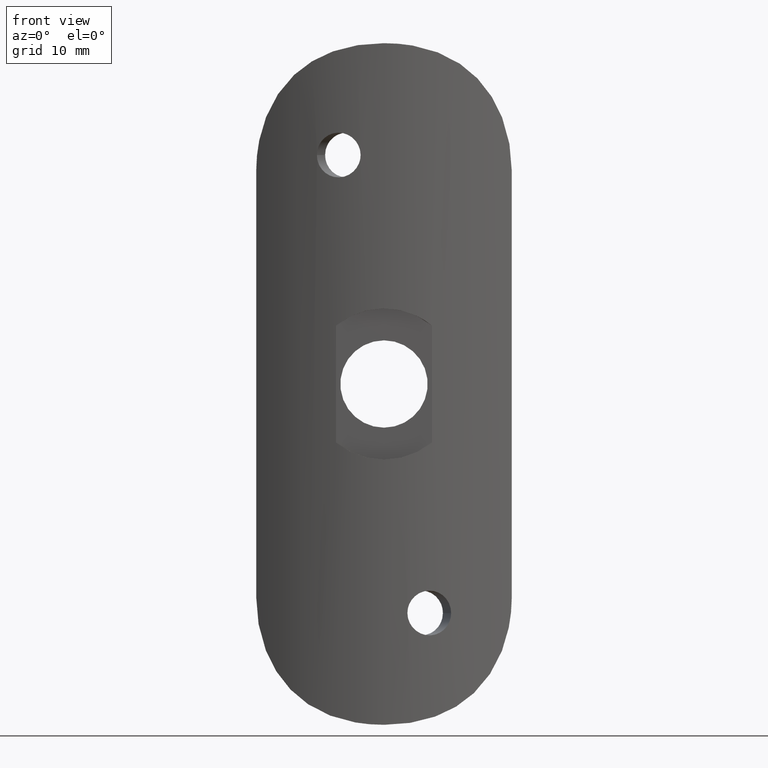
[diagram: clean part render]
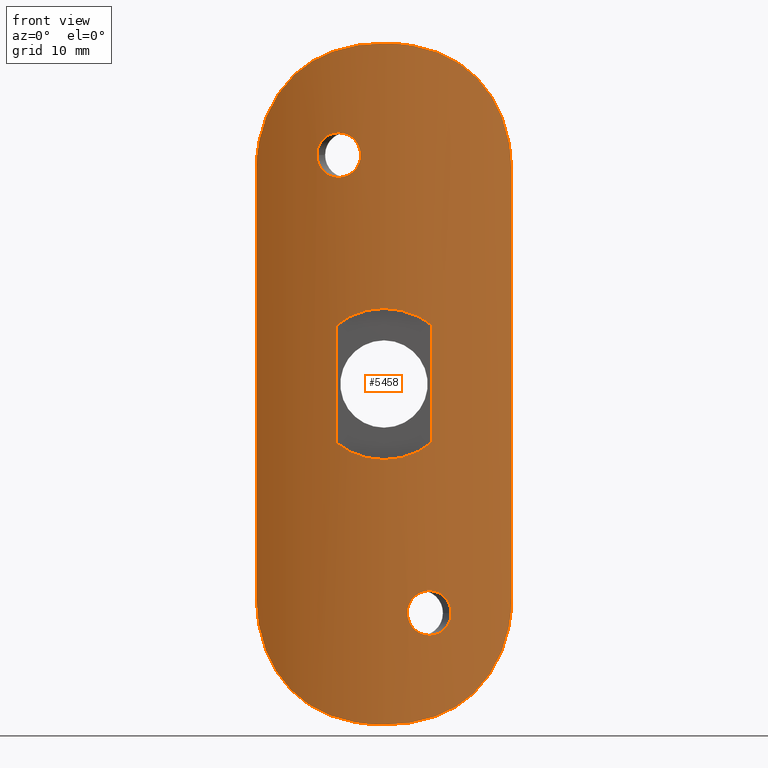
[diagram: same view with one face highlighted and labeled with its STEP entity id]
A machine part, front view. The second image highlights one B-rep face of the part: STEP entity #5458.
In plain terms, the highlighted cylindrical surface (partial cylindrical patch) has radius 20.55 mm, axis along (-0, -0, -1).
Its self-contained STEP definition (entity closure, byte-faithful):
#13 = CARTESIAN_POINT ( 'NONE',  ( 2.196107964758905684, 0.1176822213650279281, -21.63884947450718244 ) ) ;
#37 = CARTESIAN_POINT ( 'NONE',  ( -6.291284658342779501, 0.9866935900584847818, 21.22463982239049685 ) ) ;
#55 = VERTEX_POINT ( 'NONE', #4670 ) ;
#93 = CARTESIAN_POINT ( 'NONE',  ( 12.00000000000000000, 3.867599093655612830, 20.82532465503840413 ) ) ;
#95 = CARTESIAN_POINT ( 'NONE',  ( 5.891578754919766681, 0.8625008551838139192, -22.78110642044669731 ) ) ;
#100 = CARTESIAN_POINT ( 'NONE',  ( -2.196107964758913234, 0.1176822213650333959, 21.50000000000002842 ) ) ;
#130 = CARTESIAN_POINT ( 'NONE',  ( 1.022551623591454240, 0.02447659234468003292, -7.028918398244950794 ) ) ;
#152 = CARTESIAN_POINT ( 'NONE',  ( 6.304327887840908140, 0.9909113227995350881, -21.50000000000002842 ) ) ;
#201 = CARTESIAN_POINT ( 'NONE',  ( 2.196107964758904352, 0.1176822213650361715, -21.50000000000002487 ) ) ;
#206 = VERTEX_POINT ( 'NONE', #2045 ) ;
#212 = CARTESIAN_POINT ( 'NONE',  ( -3.011738608398835115, 0.2215739278179910954, 19.83003175637896476 ) ) ;
#229 = CARTESIAN_POINT ( 'NONE',  ( 5.619240430550133780, 0.7829490649836835514, -23.08317365209963512 ) ) ;
#238 = CARTESIAN_POINT ( 'NONE',  ( -4.191232499519207622, 0.4293674073479218367, -5.745343789263872125 ) ) ;
#265 = CARTESIAN_POINT ( 'NONE',  ( 0.2059697140839437668, -3.066259269060567227E-16, -7.100000000000000533 ) ) ;
#315 = CARTESIAN_POINT ( 'NONE',  ( 7.565155939109336813, 1.440374234520338748, 29.76760648692991396 ) ) ;
#360 = CARTESIAN_POINT ( 'NONE',  ( -11.64480806118127632, 3.617302323465929170, 23.22607689744122439 ) ) ;
#371 = CARTESIAN_POINT ( 'NONE',  ( -11.93189946652243627, 3.818008342000465571, -21.63634898292987430 ) ) ;
#398 = CARTESIAN_POINT ( 'NONE',  ( 5.536237308077762265, 0.7447776640479754073, 30.96738982605044299 ) ) ;
#402 = CARTESIAN_POINT ( 'NONE',  ( -4.019515070331801887, 0.3929784181706611479, 31.48658961672468592 ) ) ;
#423 = VERTEX_POINT ( 'NONE', #8974 ) ;
#436 = EDGE_CURVE ( 'NONE', #206, #4526, #10312, .T. ) ;
#441 = CARTESIAN_POINT ( 'NONE',  ( -7.556449153321901591, 1.436897327260850732, 29.77418816922519795 ) ) ;
#465 = ORIENTED_EDGE ( 'NONE', *, *, #4002, .T. ) ;
#556 = B_SPLINE_CURVE_WITH_KNOTS ( 'NONE', 3,
 ( #5312, #4446, #5361, #3434, #11446, #402, #10444, #5441, #10409, #10316, #441, #3351, #8470, #10481, #4486, #12371, #5485, #6401, #7492, #9307, #6329, #360, #2447, #7362, #1366, #4404 ),
 .UNSPECIFIED., .F., .F.,
 ( 4, 2, 2, 2, 2, 2, 2, 2, 2, 2, 2, 2, 4 ),
 ( 1.143113421885059593E-17, 0.002442704272823939624, 0.003664056409235903582, 0.004885408545647868840, 0.007328112818471794153, 0.008549464954883760279, 0.009770817091295727272, 0.01099216922770769427, 0.01221352136411965952, 0.01465622563694359871, 0.01587757777335556744, 0.01709892990976753444, 0.01954163418259147189 ),
 .UNSPECIFIED. ) ;
#731 = B_SPLINE_CURVE_WITH_KNOTS ( 'NONE', 3,
 ( #4179, #93, #5175, #7357, #12456, #7399, #6276, #12328, #4398, #1404, #10441, #11438, #5308, #4311, #6397, #315, #2400, #3257, #398, #8424, #11257, #8254, #5269, #8293, #11396, #2312 ),
 .UNSPECIFIED., .F., .F.,
 ( 4, 2, 2, 2, 2, 2, 2, 2, 2, 2, 2, 2, 4 ),
 ( 0.000000000000000000, 0.002441037165012326787, 0.003661555747518484977, 0.004882074330024644034, 0.007323111495036960412, 0.008543630077543121204, 0.009764148660049279393, 0.01098466724255543932, 0.01220518582506159404, 0.01464622299007390174, 0.01586674157258005646, 0.01708726015508621118, 0.01952829732009852409 ),
 .UNSPECIFIED. ) ;
#819 = B_SPLINE_CURVE_WITH_KNOTS ( 'NONE', 3,
 ( #10314, #11729, #11778, #10942, #7120, #1121, #3331, #2299, #9593, #5683, #5727, #1361, #6652, #1164, #12655, #9213, #4223, #3113, #3023, #4129, #12048, #12142, #5132, #10180, #11077, #7225 ),
 .UNSPECIFIED., .F., .F.,
 ( 4, 2, 2, 2, 2, 2, 2, 2, 2, 2, 2, 2, 4 ),
 ( 7.499305273336299745E-18, 0.002442704272823938323, 0.003664056409235903582, 0.004885408545647870575, 0.007328112818471798490, 0.008549464954883763748, 0.009770817091295729007, 0.01099216922770769427, 0.01221352136411965952, 0.01465622563694360045, 0.01587757777335557438, 0.01709892990976754484, 0.01954163418259148924 ),
 .UNSPECIFIED. ) ;
#876 = EDGE_CURVE ( 'NONE', #423, #4526, #819, .T. ) ;
#881 = CARTESIAN_POINT ( 'NONE',  ( -0.8225946775544148437, 0.01545847802524476060, 7.055152419481142800 ) ) ;
#921 = ORIENTED_EDGE ( 'NONE', *, *, #8559, .F. ) ;
#967 = CARTESIAN_POINT ( 'NONE',  ( -3.858693731907320679, 0.3623974372399190180, 5.973502814428242935 ) ) ;
#996 = CARTESIAN_POINT ( 'NONE',  ( 4.190950511543816148, 0.4293040401896541236, -5.745575327771957674 ) ) ;
#1025 = EDGE_CURVE ( 'NONE', #206, #8933, #731, .T. ) ;
#1035 = CARTESIAN_POINT ( 'NONE',  ( -6.100378874264540840, 0.9262724475449090056, 20.56837844780813640 ) ) ;
#1049 = CARTESIAN_POINT ( 'NONE',  ( -3.158314881030830801, 0.2410398675639368604, 6.371601078449765865 ) ) ;
#1076 = CARTESIAN_POINT ( 'NONE',  ( -5.892107906062030942, 0.8626585104905203361, 20.21956268108030841 ) ) ;
#1084 = CARTESIAN_POINT ( 'NONE',  ( 2.016323884336121086, 0.09546835876887949102, -6.820010655593130799 ) ) ;
#1106 = CARTESIAN_POINT ( 'NONE',  ( 4.138444909906153768, 0.4205434202813690403, -19.39989493954468003 ) ) ;
#1121 = CARTESIAN_POINT ( 'NONE',  ( 4.019515070331798334, 0.3929784181706627577, -31.48658961672468592 ) ) ;
#1126 = CARTESIAN_POINT ( 'NONE',  ( -6.038498007010931090, 0.9070650787473959475, 20.44778618800197023 ) ) ;
#1164 = CARTESIAN_POINT ( 'NONE',  ( 8.992997745725388015, 2.069792450696423813, -28.47099985454206816 ) ) ;
#1178 = CARTESIAN_POINT ( 'NONE',  ( 2.787982894083824714, 0.1862926250899646641, -6.542572791436417567 ) ) ;
#1188 = CARTESIAN_POINT ( 'NONE',  ( 6.239739115062144847, 0.9701919011343452803, -22.04565024489599523 ) ) ;
#1219 = CARTESIAN_POINT ( 'NONE',  ( 3.157583189755941433, 0.2409226289118731601, -6.371976759672588031 ) ) ;
#1229 = CARTESIAN_POINT ( 'NONE',  ( 6.037623490229741208, 0.9067969670731634846, -22.55373155016709674 ) ) ;
#1248 = CARTESIAN_POINT ( 'NONE',  ( -5.619607186773508900, 0.7830592296716510914, 23.08268628141317080 ) ) ;
#1258 = CARTESIAN_POINT ( 'NONE',  ( -3.738126498205140091, 0.3424008527606209329, 19.46729538792309100 ) ) ;
#1361 = CARTESIAN_POINT ( 'NONE',  ( 8.164066724082505999, 1.688435056704962856, -29.28423691125916761 ) ) ;
#1366 = CARTESIAN_POINT ( 'NONE',  ( -12.00000000000000000, 3.867599093655615050, 20.82542637679248543 ) ) ;
#1375 = CARTESIAN_POINT ( 'NONE',  ( -10.57120301057236489, 2.921180050394568184, -26.23181291921781622 ) ) ;
#1396 = B_SPLINE_CURVE_WITH_KNOTS ( 'NONE', 3,
 ( #152, #2150, #6155, #7104, #9087, #2200, #3082, #7152, #4105, #12063, #9185, #9138, #10111, #1106, #10065, #10195, #8123, #5100, #3222, #10155, #11230, #12243, #6244, #11052, #11191, #12194 ),
 .UNSPECIFIED., .F., .F.,
 ( 4, 2, 2, 2, 2, 2, 2, 2, 2, 2, 2, 2, 4 ),
 ( 0.006569841464936864057, 0.007390878664690698346, 0.008211915864444533503, 0.008622434464321445877, 0.009032953064198359985, 0.009443471664075272359, 0.009853990263952186468, 0.01026450886382910058, 0.01067502746370601469, 0.01108554606358292706, 0.01149606466345984117, 0.01231710186321366071, 0.01313813906296748026 ),
 .UNSPECIFIED. ) ;
#1404 = CARTESIAN_POINT ( 'NONE',  ( 9.955326618855732335, 2.570852261898295410, 27.23425730716095572 ) ) ;
#1412 = CARTESIAN_POINT ( 'NONE',  ( 0.000000000000000000, 20.54999999999999716, 32.00000000000000000 ) ) ;
#1459 = CARTESIAN_POINT ( 'NONE',  ( -11.31885359670267732, 3.397375670358062205, -24.39806094091036570 ) ) ;
#1476 = EDGE_CURVE ( 'NONE', #11277, #55, #2429, .T. ) ;
#1684 = ORIENTED_EDGE ( 'NONE', *, *, #1476, .T. ) ;
#1808 = CARTESIAN_POINT ( 'NONE',  ( -3.237124911212131195, 0.2526143562426093614, -31.68063621403022267 ) ) ;
#1869 = DIRECTION ( 'NONE',  ( -0.000000000000000000, -0.000000000000000000, -1.000000000000000000 ) ) ;
#1889 = CARTESIAN_POINT ( 'NONE',  ( 2.196107964758904352, 0.1176822213650361715, -21.50000000000002487 ) ) ;
#1924 = ORIENTED_EDGE ( 'NONE', *, *, #9557, .T. ) ;
#1964 = CARTESIAN_POINT ( 'NONE',  ( -2.788949871156110039, 0.1864290471342361366, 6.542148199324964608 ) ) ;
#1977 = CARTESIAN_POINT ( 'NONE',  ( -2.903994566246707709, 0.2059905680970837427, 23.08075861847516208 ) ) ;
#2029 = CARTESIAN_POINT ( 'NONE',  ( -5.806867891380339763, 0.8372576783111697063, 20.11157854779412091 ) ) ;
#2045 = CARTESIAN_POINT ( 'NONE',  ( 12.00000000000000000, 3.867599093655613718, 20.00000000000000000 ) ) ;
#2107 = CARTESIAN_POINT ( 'NONE',  ( -3.152300355519400910, 0.2400895821910629391, -6.374632866597692349 ) ) ;
#2117 = CARTESIAN_POINT ( 'NONE',  ( -2.460009148017181513, 0.1475025836330511597, 22.55600729833793139 ) ) ;
#2150 = CARTESIAN_POINT ( 'NONE',  ( 6.304327887840909916, 0.9909113227995355322, -21.22586212097624170 ) ) ;
#2158 = CARTESIAN_POINT ( 'NONE',  ( -4.931276231783177089, 0.6000320691308591581, 23.49308847869957262 ) ) ;
#2198 = CARTESIAN_POINT ( 'NONE',  ( -0.8174884915201696689, 0.01234469634162299947, -7.064494831805584241 ) ) ;
#2200 = CARTESIAN_POINT ( 'NONE',  ( 5.621723058020299923, 0.7836615918610738696, -19.91924138152489476 ) ) ;
#2206 = CARTESIAN_POINT ( 'NONE',  ( -5.515393176443282641, 0.7536365650231825475, 23.17123944591990181 ) ) ;
#2299 = CARTESIAN_POINT ( 'NONE',  ( 5.532917837906416558, 0.7438366506647351439, -30.96886078951178689 ) ) ;
#2302 = CARTESIAN_POINT ( 'NONE',  ( -3.236914806685621038, 0.2562113307606161960, 19.67801841657226092 ) ) ;
#2312 = CARTESIAN_POINT ( 'NONE',  ( -9.117266696107152617E-15, 0.000000000000000000, 32.00000000000000000 ) ) ;
#2323 = CARTESIAN_POINT ( 'NONE',  ( -4.411722216362568005, 0.4754446895425801789, -31.36894475695905982 ) ) ;
#2344 = CARTESIAN_POINT ( 'NONE',  ( -3.609214619167734117, 0.3190269527922297566, 19.50698948931666621 ) ) ;
#2354 = LINE ( 'NONE', #5694, #10054 ) ;
#2376 = CARTESIAN_POINT ( 'NONE',  ( -9.250554041662468308, 2.197810460345604344, -28.17621965723953892 ) ) ;
#2389 = CARTESIAN_POINT ( 'NONE',  ( -2.473966946412533563, 0.1493183851465804957, 20.44626844983296721 ) ) ;
#2400 = CARTESIAN_POINT ( 'NONE',  ( 7.245185304457206321, 1.316302063506890718, 29.99670429303103347 ) ) ;
#2429 = LINE ( 'NONE', #6985, #3224 ) ;
#2447 = CARTESIAN_POINT ( 'NONE',  ( -11.72926870889600615, 3.675950132417820981, 22.83126104549899793 ) ) ;
#2784 = VERTEX_POINT ( 'NONE', #10767 ) ;
#2936 = CARTESIAN_POINT ( 'NONE',  ( 2.303480977588604706, 0.1294397518470195019, -22.17732966109167592 ) ) ;
#2957 = ORIENTED_EDGE ( 'NONE', *, *, #8695, .T. ) ;
#2981 = CARTESIAN_POINT ( 'NONE',  ( 0.8154304983382341110, 0.01225860480964739360, 7.064744495770781008 ) ) ;
#3023 = CARTESIAN_POINT ( 'NONE',  ( 10.90931707614188007, 3.131748158434783935, -25.52295538976314049 ) ) ;
#3028 = CARTESIAN_POINT ( 'NONE',  ( 0.4092360664649021262, -5.026738864255330492E-05, 7.100145492238564948 ) ) ;
#3048 = CARTESIAN_POINT ( 'NONE',  ( -2.196107964758915454, 0.1176822213650350613, 21.77413787902382936 ) ) ;
#3056 = CARTESIAN_POINT ( 'NONE',  ( -4.541476731565495584, 0.5062318690124316678, 19.40009968649576422 ) ) ;
#3082 = CARTESIAN_POINT ( 'NONE',  ( 5.517644774854876921, 0.7542645363679744142, -19.83054709388247261 ) ) ;
#3113 = CARTESIAN_POINT ( 'NONE',  ( 10.57043074677839201, 2.920680030414521955, -26.23359019163507000 ) ) ;
#3116 = CARTESIAN_POINT ( 'NONE',  ( 4.541815802787618317, 0.5077306118882403130, -23.58637034614039862 ) ) ;
#3195 = CARTESIAN_POINT ( 'NONE',  ( -6.304327887840915245, 0.9909113227995374196, 21.36115052549288507 ) ) ;
#3222 = CARTESIAN_POINT ( 'NONE',  ( 3.239306059514502678, 0.2565906414610314989, -19.67659486803183810 ) ) ;
#3224 = VECTOR ( 'NONE', #7919, 1000.000000000000000 ) ;
#3257 = CARTESIAN_POINT ( 'NONE',  ( 6.244935086374507449, 0.9590666021320810586, 30.62764866027265143 ) ) ;
#3276 = CARTESIAN_POINT ( 'NONE',  ( -6.250912354969938356, 0.9734908483665378753, 22.05346326636900756 ) ) ;
#3331 = CARTESIAN_POINT ( 'NONE',  ( 4.407850644025230302, 0.4745909305598443595, -31.37018340299277241 ) ) ;
#3351 = CARTESIAN_POINT ( 'NONE',  ( -8.164066724082507776, 1.688435056704962411, 29.28423691125915340 ) ) ;
#3421 = CARTESIAN_POINT ( 'NONE',  ( -2.711769769580428591, 0.1794705419655740208, 20.11288244746490150 ) ) ;
#3434 = CARTESIAN_POINT ( 'NONE',  ( -2.836642390231776112, 0.1927378290949691986, 31.75985753279653068 ) ) ;
#3441 = CARTESIAN_POINT ( 'NONE',  ( -12.00000000000000355, 3.867599093655614606, -20.82532465503841479 ) ) ;
#3495 = FACE_BOUND ( 'NONE', #8541, .T. ) ;
#3570 = VECTOR ( 'NONE', #1869, 1000.000000000000000 ) ;
#3672 = AXIS2_PLACEMENT_3D ( 'NONE', #1412, #5406, #8396 ) ;
#3837 = ORIENTED_EDGE ( 'NONE', *, *, #10281, .F. ) ;
#3899 = CARTESIAN_POINT ( 'NONE',  ( -4.505552130427524560, 0.5000000000000004441, 5.487257967327575869 ) ) ;
#4002 = EDGE_CURVE ( 'NONE', #2784, #5058, #11821, .T. ) ;
#4007 = CARTESIAN_POINT ( 'NONE',  ( 1.615795529048174251, 0.06265981462883447872, 6.916721026609292444 ) ) ;
#4042 = CARTESIAN_POINT ( 'NONE',  ( 4.505552130427524560, 0.5000000000000004441, 5.487257967327575869 ) ) ;
#4063 = CARTESIAN_POINT ( 'NONE',  ( -4.001566501396760955, 0.3929171881103979969, 23.58617600365094447 ) ) ;
#4074 = CARTESIAN_POINT ( 'NONE',  ( -4.002770174454591157, 0.3931529265465266154, 19.41362965385966177 ) ) ;
#4091 = CARTESIAN_POINT ( 'NONE',  ( 6.291182614311607857, 0.9866605425907668536, -21.77636478482308036 ) ) ;
#4105 = CARTESIAN_POINT ( 'NONE',  ( 5.180606738276478218, 0.6633215442318358690, -19.61348174257146937 ) ) ;
#4129 = CARTESIAN_POINT ( 'NONE',  ( 11.31942153671302975, 3.397748102794349911, -24.39640287687041820 ) ) ;
#4133 = CARTESIAN_POINT ( 'NONE',  ( 6.304327887840905476, 0.9909113227995353101, -21.63710115732733286 ) ) ;
#4151 = CARTESIAN_POINT ( 'NONE',  ( -6.304327887840914357, 0.9909113227995376416, 21.77763369169881713 ) ) ;
#4179 = CARTESIAN_POINT ( 'NONE',  ( 12.00000000000000000, 3.867599093655613718, 20.00000000000000000 ) ) ;
#4181 = CARTESIAN_POINT ( 'NONE',  ( 5.297158660191573887, 0.6941296804635922468, -23.32198158342779593 ) ) ;
#4197 = CARTESIAN_POINT ( 'NONE',  ( -4.540129781961820044, 0.5073516558733849324, 23.58656559437250522 ) ) ;
#4208 = CARTESIAN_POINT ( 'NONE',  ( -2.263540092760234490, 0.1250247084382341001, 20.95434975510405806 ) ) ;
#4223 = CARTESIAN_POINT ( 'NONE',  ( 9.952719643953837902, 2.569399929939180982, -27.23823856945869792 ) ) ;
#4253 = CARTESIAN_POINT ( 'NONE',  ( -2.209845717753645911, 0.1191456048414967633, 21.22363521517698004 ) ) ;
#4284 = CARTESIAN_POINT ( 'NONE',  ( -8.169198336596609877, 1.690689837189891298, -29.27964985723644276 ) ) ;
#4292 = CARTESIAN_POINT ( 'NONE',  ( -6.049714249835681734, 0.9103825564539168580, 22.55852322862247306 ) ) ;
#4311 = CARTESIAN_POINT ( 'NONE',  ( 8.454984399070681889, 1.817544348643117536, 29.01973767204460231 ) ) ;
#4324 = CARTESIAN_POINT ( 'NONE',  ( 2.797486057563126173E-19, -8.657447964749999592E-16, -7.099999999999998757 ) ) ;
#4326 = CARTESIAN_POINT ( 'NONE',  ( -5.536237308077768482, 0.7447776640479801813, -30.96738982605043233 ) ) ;
#4334 = CARTESIAN_POINT ( 'NONE',  ( -4.801660277919112652, 0.5683937167496024845, 23.53337578889404824 ) ) ;
#4398 = CARTESIAN_POINT ( 'NONE',  ( 10.57120301057235956, 2.921180050394565075, 26.23181291921781622 ) ) ;
#4404 = CARTESIAN_POINT ( 'NONE',  ( -12.00000000000000000, 3.867599093655613718, 20.00000000000000000 ) ) ;
#4446 = CARTESIAN_POINT ( 'NONE',  ( -0.8244347916045254854, 6.324512672832084957E-17, 32.00000000000000000 ) ) ;
#4486 = CARTESIAN_POINT ( 'NONE',  ( -9.248077892315398785, 2.196565208356638266, 28.17913971635068293 ) ) ;
#4526 = VERTEX_POINT ( 'NONE', #7653 ) ;
#4670 = CARTESIAN_POINT ( 'NONE',  ( 4.505552130427524560, 0.5000000000000004441, -5.487257967327575869 ) ) ;
#4921 = CARTESIAN_POINT ( 'NONE',  ( 4.505552130427524560, 0.5000000000000004441, 5.487257967327575869 ) ) ;
#4964 = CARTESIAN_POINT ( 'NONE',  ( 2.408715658835561158, 0.1415852076297058337, -22.43162155219192400 ) ) ;
#4993 = ORIENTED_EDGE ( 'NONE', *, *, #12291, .T. ) ;
#4999 = CARTESIAN_POINT ( 'NONE',  ( 3.854152017371394567, 0.3615104314349227854, 5.976505600328446022 ) ) ;
#5019 = CARTESIAN_POINT ( 'NONE',  ( -3.355921083440997155, 0.2754726353114332338, 23.38651825742859813 ) ) ;
#5028 = EDGE_LOOP ( 'NONE', ( #7985, #8919, #1684, #4993, #465 ) ) ;
#5058 = VERTEX_POINT ( 'NONE', #12654 ) ;
#5066 = CARTESIAN_POINT ( 'NONE',  ( -2.251196352204623885, 0.1234079979794760751, 22.05054682085797424 ) ) ;
#5088 = CARTESIAN_POINT ( 'NONE',  ( 3.732009036719485806, 0.3401370741220184901, -23.54469293929370011 ) ) ;
#5100 = CARTESIAN_POINT ( 'NONE',  ( 3.358520300593894614, 0.2759020642753255426, -19.61217654066244975 ) ) ;
#5126 = CARTESIAN_POINT ( 'NONE',  ( 0.4127698199974663695, 0.003133423836613627965, -7.090945252661482456 ) ) ;
#5132 = CARTESIAN_POINT ( 'NONE',  ( 11.72926870889600970, 3.675950132417822314, -22.83126104549899438 ) ) ;
#5175 = CARTESIAN_POINT ( 'NONE',  ( 11.93189946652243449, 3.818008342000464683, 21.63634898292986719 ) ) ;
#5177 = CARTESIAN_POINT ( 'NONE',  ( 4.931496442379488698, 0.6000866306928605010, -23.49301051068339063 ) ) ;
#5244 = CARTESIAN_POINT ( 'NONE',  ( -5.899482936464679916, 0.8640575412914385245, 22.79248882129712328 ) ) ;
#5269 = CARTESIAN_POINT ( 'NONE',  ( 2.839675941182904673, 0.1931468925307959772, 31.75932234247533259 ) ) ;
#5281 = CARTESIAN_POINT ( 'NONE',  ( -7.245185304457213427, 1.316302063506895159, -29.99670429303102992 ) ) ;
#5296 = CARTESIAN_POINT ( 'NONE',  ( -3.358336086306566770, 0.2758716750763257064, 19.61226958577292478 ) ) ;
#5308 = CARTESIAN_POINT ( 'NONE',  ( 8.995662457020596747, 2.071100874837505934, 28.46802102427642112 ) ) ;
#5312 = CARTESIAN_POINT ( 'NONE',  ( -9.117266696107152617E-15, 0.000000000000000000, 32.00000000000000000 ) ) ;
#5334 = CARTESIAN_POINT ( 'NONE',  ( -5.294819862470701466, 0.6935035878826301126, 23.32340513196821874 ) ) ;
#5361 = CARTESIAN_POINT ( 'NONE',  ( -1.637081255389283729, 0.04948494443770538875, 31.94438342167033795 ) ) ;
#5406 = DIRECTION ( 'NONE',  ( -0.000000000000000000, -0.000000000000000000, -1.000000000000000000 ) ) ;
#5441 = CARTESIAN_POINT ( 'NONE',  ( -5.532917837906419223, 0.7438366506647378085, 30.96886078951179400 ) ) ;
#5450 = CARTESIAN_POINT ( 'NONE',  ( -10.90936914002777947, 3.131790059932552772, -25.52261610347974496 ) ) ;
#5458 = ADVANCED_FACE ( 'NONE', ( #9922, #8023, #3495, #7706 ), #9612, .T. ) ;
#5484 = LINE ( 'NONE', #9901, #7037 ) ;
#5485 = CARTESIAN_POINT ( 'NONE',  ( -9.952719643953839679, 2.569399929939177873, 27.23823856945869437 ) ) ;
#5683 = CARTESIAN_POINT ( 'NONE',  ( 7.234194564605608058, 1.312203026654633842, -30.00411977800343166 ) ) ;
#5694 = CARTESIAN_POINT ( 'NONE',  ( -4.505552130427524560, 0.5000000000000004441, 32.00000000000000000 ) ) ;
#5727 = CARTESIAN_POINT ( 'NONE',  ( 7.556449153321892709, 1.436897327260850066, -29.77418816922518729 ) ) ;
#5853 = CARTESIAN_POINT ( 'NONE',  ( 7.739856686759259326E-16, 0.000000000000000000, -32.00000000000000000 ) ) ;
#5893 = CARTESIAN_POINT ( 'NONE',  ( -1.624763958477066339, 0.06040864019441401916, 6.923524637106261537 ) ) ;
#6000 = CARTESIAN_POINT ( 'NONE',  ( -4.810731900116613780, 0.5694266969605281670, 19.45530706070634963 ) ) ;
#6032 = CARTESIAN_POINT ( 'NONE',  ( -3.606538348274588301, 0.3185505382779327266, 23.49208214119527938 ) ) ;
#6056 = CARTESIAN_POINT ( 'NONE',  ( -2.017713760802206213, 0.09560940737443106296, 6.819587643341933791 ) ) ;
#6074 = CARTESIAN_POINT ( 'NONE',  ( -4.135311420955126493, 0.4198994558193033244, 23.59989372133297536 ) ) ;
#6155 = CARTESIAN_POINT ( 'NONE',  ( 6.251673258561863733, 0.9737356142350108712, -20.94945317914208616 ) ) ;
#6187 = CARTESIAN_POINT ( 'NONE',  ( 6.201703014943665160, 0.9580582747967166801, -22.17657138289438379 ) ) ;
#6230 = CARTESIAN_POINT ( 'NONE',  ( 4.405914236817134899, 0.4774015711505824044, -23.60004963556220048 ) ) ;
#6244 = CARTESIAN_POINT ( 'NONE',  ( 2.461463097306900494, 0.1476762290639840047, -20.44147677137759089 ) ) ;
#6250 = CARTESIAN_POINT ( 'NONE',  ( -4.406730047025075869, 0.4775691865745303466, 23.60010506045538392 ) ) ;
#6276 = CARTESIAN_POINT ( 'NONE',  ( 11.31885359670267910, 3.397375670358060873, 24.39806094091035860 ) ) ;
#6292 = CARTESIAN_POINT ( 'NONE',  ( -7.565155939109340366, 1.440374234520339192, -29.76760648692991396 ) ) ;
#6329 = CARTESIAN_POINT ( 'NONE',  ( -11.44009522695896663, 3.478326778409639441, 24.00843907464543037 ) ) ;
#6330 = VERTEX_POINT ( 'NONE', #12549 ) ;
#6334 = CARTESIAN_POINT ( 'NONE',  ( -1.418438090112995820, 0.04802932433249387789, -6.959840303491922953 ) ) ;
#6397 = CARTESIAN_POINT ( 'NONE',  ( 8.169198336596604548, 1.690689837189890632, 29.27964985723644276 ) ) ;
#6401 = CARTESIAN_POINT ( 'NONE',  ( -10.57043074677839911, 2.920680030414520179, 26.23359019163507710 ) ) ;
#6652 = CARTESIAN_POINT ( 'NONE',  ( 8.450991300507091353, 1.815731251027912441, -29.02354936809624419 ) ) ;
#6827 = CARTESIAN_POINT ( 'NONE',  ( 6.304327887840908140, 0.9909113227995350881, -21.50000000000002842 ) ) ;
#6877 = CARTESIAN_POINT ( 'NONE',  ( 12.00000000000000000, 3.867599093655613718, 32.00000000000000000 ) ) ;
#6936 = CARTESIAN_POINT ( 'NONE',  ( -0.4150663415173048154, 0.003180843415553408996, 7.090807965090501597 ) ) ;
#6985 = CARTESIAN_POINT ( 'NONE',  ( 4.505552130427524560, 0.5000000000000004441, 32.00000000000000000 ) ) ;
#7024 = CARTESIAN_POINT ( 'NONE',  ( -2.615797322677404502, 0.1662387869349675751, 22.79019555880710257 ) ) ;
#7037 = VECTOR ( 'NONE', #10814, 1000.000000000000000 ) ;
#7051 = CARTESIAN_POINT ( 'NONE',  ( 2.011250680346196251, 0.09769514789046426784, 6.812246006453242408 ) ) ;
#7104 = CARTESIAN_POINT ( 'NONE',  ( 6.051113126564609423, 0.9108152979125515580, -20.44399270166212546 ) ) ;
#7113 = CARTESIAN_POINT ( 'NONE',  ( -2.196107964758913234, 0.1176822213650333959, 21.50000000000002842 ) ) ;
#7120 = CARTESIAN_POINT ( 'NONE',  ( 3.233250671116528530, 0.2520170817718283551, -31.68143250167895886 ) ) ;
#7152 = CARTESIAN_POINT ( 'NONE',  ( 5.297253616974106905, 0.6941532407948732830, -19.67804549071029641 ) ) ;
#7166 = CARTESIAN_POINT ( 'NONE',  ( -5.527110855328945860, 0.7562827192594081538, 19.82121123978270205 ) ) ;
#7169 = VERTEX_POINT ( 'NONE', #6827 ) ;
#7178 = CARTESIAN_POINT ( 'NONE',  ( 3.233555131649783920, 0.2544198864995589893, -23.33521373582671288 ) ) ;
#7183 = VERTEX_POINT ( 'NONE', #3899 ) ;
#7211 = CARTESIAN_POINT ( 'NONE',  ( -2.906552370085306425, 0.2063494179680205320, 19.91682634790042172 ) ) ;
#7225 = CARTESIAN_POINT ( 'NONE',  ( 12.00000000000000000, 3.867599093655613718, -20.00000000000000355 ) ) ;
#7230 = CARTESIAN_POINT ( 'NONE',  ( 2.713056852439936328, 0.1796478414173043048, -22.88842145220594659 ) ) ;
#7233 = CARTESIAN_POINT ( 'NONE',  ( -9.117266696107152617E-15, 0.000000000000000000, 32.00000000000000000 ) ) ;
#7284 = CARTESIAN_POINT ( 'NONE',  ( -12.00000000000000000, 3.867599093655613718, -20.00000000000000355 ) ) ;
#7303 = CARTESIAN_POINT ( 'NONE',  ( -2.196107964758913234, 0.1176822213650333959, 21.50000000000002842 ) ) ;
#7357 = CARTESIAN_POINT ( 'NONE',  ( 11.72907469377582679, 3.675814856459924673, 22.83227826673835636 ) ) ;
#7362 = CARTESIAN_POINT ( 'NONE',  ( -11.93188330489361881, 3.817998496445515588, 21.63619040237307800 ) ) ;
#7399 = CARTESIAN_POINT ( 'NONE',  ( 11.43944363209317139, 3.477888637730434773, 24.01070385012516439 ) ) ;
#7456 = CARTESIAN_POINT ( 'NONE',  ( -8.995662457020600300, 2.071100874837506378, -28.46802102427642467 ) ) ;
#7458 = B_SPLINE_CURVE_WITH_KNOTS ( 'NONE', 3,
 ( #12972, #996, #12219, #1219, #1178, #1084, #10264, #130, #8248, #5126, #265, #9249 ),
 .UNSPECIFIED., .F., .F.,
 ( 4, 2, 2, 2, 2, 4 ),
 ( 1.084202172485504434E-19, 0.001222659468844261663, 0.002445318937688523327, 0.003667978406532785424, 0.004279308140954916038, 0.004890637875377045786 ),
 .UNSPECIFIED. ) ;
#7492 = CARTESIAN_POINT ( 'NONE',  ( -10.90931707614188007, 3.131748158434784379, 25.52295538976313694 ) ) ;
#7653 = CARTESIAN_POINT ( 'NONE',  ( 12.00000000000000000, 3.867599093655613718, -20.00000000000000355 ) ) ;
#7706 = FACE_BOUND ( 'NONE', #11964, .T. ) ;
#7919 = DIRECTION ( 'NONE',  ( -0.000000000000000000, -0.000000000000000000, -1.000000000000000000 ) ) ;
#7985 = ORIENTED_EDGE ( 'NONE', *, *, #12447, .T. ) ;
#8023 = FACE_OUTER_BOUND ( 'NONE', #8693, .T. ) ;
#8028 = CARTESIAN_POINT ( 'NONE',  ( 4.191072330589547867, 0.4293314148560387622, 5.745475302939110129 ) ) ;
#8054 = EDGE_CURVE ( 'NONE', #8668, #12069, #11750, .T. ) ;
#8057 = ORIENTED_EDGE ( 'NONE', *, *, #1025, .T. ) ;
#8066 = CARTESIAN_POINT ( 'NONE',  ( 3.151568307366501287, 0.2399725249552662754, 6.375007777859437397 ) ) ;
#8120 = CARTESIAN_POINT ( 'NONE',  ( -2.785244394877145702, 0.1859571249252419400, -6.543602213013831381 ) ) ;
#8123 = CARTESIAN_POINT ( 'NONE',  ( 3.609437983744283596, 0.3190666760438158334, -19.50691152130049133 ) ) ;
#8248 = CARTESIAN_POINT ( 'NONE',  ( 0.8205323003112501290, 0.01537480821461915774, -7.055395824805936300 ) ) ;
#8254 = CARTESIAN_POINT ( 'NONE',  ( 3.237124911212127198, 0.2526143562426108602, 31.68063621403025110 ) ) ;
#8293 = CARTESIAN_POINT ( 'NONE',  ( 1.638044330538452442, 0.04950677834220664625, 31.94437176565915948 ) ) ;
#8308 = CARTESIAN_POINT ( 'NONE',  ( -11.72907469377582679, 3.675814856459923785, -22.83227826673835636 ) ) ;
#8360 = CARTESIAN_POINT ( 'NONE',  ( -6.244935086374512778, 0.9590666021320846113, -30.62764866027264787 ) ) ;
#8396 = DIRECTION ( 'NONE',  ( -1.000000000000000000, 0.000000000000000000, 0.000000000000000000 ) ) ;
#8399 = CARTESIAN_POINT ( 'NONE',  ( -9.730212641888689618, 2.447553399588564993, -27.55987949649085778 ) ) ;
#8413 = CARTESIAN_POINT ( 'NONE',  ( -2.303222989694816203, 0.1294107648906447916, 20.82342861710567661 ) ) ;
#8424 = CARTESIAN_POINT ( 'NONE',  ( 4.411722216362562676, 0.4754446895425761266, 31.36894475695905982 ) ) ;
#8470 = CARTESIAN_POINT ( 'NONE',  ( -8.450991300507093129, 1.815731251027911330, 29.02354936809624064 ) ) ;
#8477 = CARTESIAN_POINT ( 'NONE',  ( -8.454984399070685441, 1.817544348643118424, -29.01973767204459875 ) ) ;
#8479 = B_SPLINE_CURVE_WITH_KNOTS ( 'NONE', 3,
 ( #7113, #3048, #5066, #2117, #7024, #1977, #11950, #11020, #5019, #6032, #9049, #4063, #6074, #6250, #4197, #4334, #2158, #9190, #5334, #2206, #1248, #5244, #4292, #3276, #4151, #11198 ),
 .UNSPECIFIED., .F., .F.,
 ( 4, 2, 2, 2, 2, 2, 2, 2, 2, 2, 2, 2, 4 ),
 ( 0.006569841464936850180, 0.007390878664690683601, 0.008211915864444517890, 0.008622434464321430264, 0.009032953064198344373, 0.009443471664075258482, 0.009853990263952169121, 0.01026450886382908149, 0.01067502746370599387, 0.01108554606358290451, 0.01149606466345981515, 0.01231710186321363296, 0.01313813906296744903 ),
 .UNSPECIFIED. ) ;
#8541 = EDGE_LOOP ( 'NONE', ( #3837, #921 ) ) ;
#8559 = EDGE_CURVE ( 'NONE', #7169, #12687, #1396, .T. ) ;
#8620 = B_SPLINE_CURVE_WITH_KNOTS ( 'NONE', 3,
 ( #7284, #3441, #371, #8308, #10325, #11454, #1459, #5450, #1375, #12469, #8399, #2376, #7456, #8477, #4284, #6292, #5281, #8360, #4326, #2323, #9404, #1808, #8779, #10844, #9497, #5853 ),
 .UNSPECIFIED., .F., .F.,
 ( 4, 2, 2, 2, 2, 2, 2, 2, 2, 2, 2, 2, 4 ),
 ( 0.000000000000000000, 0.002441037165012317246, 0.003661555747518471099, 0.004882074330024624952, 0.007323111495036933524, 0.008543630077543086510, 0.009764148660049239495, 0.01098466724255539248, 0.01220518582506154893, 0.01464622299007386531, 0.01586674157258002524, 0.01708726015508618690, 0.01952829732009850328 ),
 .UNSPECIFIED. ) ;
#8668 = VERTEX_POINT ( 'NONE', #12427 ) ;
#8693 = EDGE_LOOP ( 'NONE', ( #2957, #10672, #10185, #8057, #11215, #1924 ) ) ;
#8695 = EDGE_CURVE ( 'NONE', #12024, #423, #8620, .T. ) ;
#8779 = CARTESIAN_POINT ( 'NONE',  ( -2.839675941182911778, 0.1931468925307970319, -31.75932234247532548 ) ) ;
#8919 = ORIENTED_EDGE ( 'NONE', *, *, #10260, .T. ) ;
#8933 = VERTEX_POINT ( 'NONE', #7233 ) ;
#8974 = CARTESIAN_POINT ( 'NONE',  ( 7.739856686759259326E-16, 0.000000000000000000, -32.00000000000000000 ) ) ;
#8994 = CARTESIAN_POINT ( 'NONE',  ( -1.024499046874804975, 0.02457479840919140832, 7.028631768224770759 ) ) ;
#9002 = EDGE_CURVE ( 'NONE', #8933, #6330, #556, .T. ) ;
#9031 = CARTESIAN_POINT ( 'NONE',  ( -4.191110660951289368, 0.4293400282945931679, 5.745443830126260920 ) ) ;
#9049 = CARTESIAN_POINT ( 'NONE',  ( -3.737878077599326776, 0.3423581428342238331, 23.53260421725689611 ) ) ;
#9057 = CARTESIAN_POINT ( 'NONE',  ( -5.300956522084717015, 0.6938596176421846229, 19.66478626417334041 ) ) ;
#9087 = CARTESIAN_POINT ( 'NONE',  ( 5.901172846814321638, 0.8645669121402849155, -20.20980444119295072 ) ) ;
#9123 = CARTESIAN_POINT ( 'NONE',  ( 6.100709953618049575, 0.9263754899573052315, -22.43092351349599411 ) ) ;
#9138 = CARTESIAN_POINT ( 'NONE',  ( 4.543011296302236879, 0.5080048320496194370, -19.41382399634911593 ) ) ;
#9173 = CARTESIAN_POINT ( 'NONE',  ( 5.516955654303445478, 0.7540742493325495177, -23.16996824362109919 ) ) ;
#9183 = CARTESIAN_POINT ( 'NONE',  ( -2.209570059088973970, 0.1182200409938121144, -6.750509552568315641 ) ) ;
#9185 = CARTESIAN_POINT ( 'NONE',  ( 4.804466874448070079, 0.5690685902081301650, -19.46739578274316074 ) ) ;
#9190 = CARTESIAN_POINT ( 'NONE',  ( -5.178057570757809813, 0.6626566502517845514, 23.38782345933760354 ) ) ;
#9213 = CARTESIAN_POINT ( 'NONE',  ( 9.727451992068006703, 2.446072495299535632, -27.56368564966890133 ) ) ;
#9224 = CARTESIAN_POINT ( 'NONE',  ( -1.617413708993219679, 0.06278853557047772704, -6.916339869232412951 ) ) ;
#9249 = CARTESIAN_POINT ( 'NONE',  ( 2.797486057563126173E-19, -8.657447964749999592E-16, -7.099999999999998757 ) ) ;
#9258 = CARTESIAN_POINT ( 'NONE',  ( 4.804222559239959445, 0.5690065659041141366, -23.53270461207696584 ) ) ;
#9307 = CARTESIAN_POINT ( 'NONE',  ( -11.31942153671303153, 3.397748102794351244, 24.39640287687041820 ) ) ;
#9335 = CARTESIAN_POINT ( 'NONE',  ( -2.196107964758914566, 0.1176822213650350196, 21.36289884267271333 ) ) ;
#9404 = CARTESIAN_POINT ( 'NONE',  ( -4.025376523089081893, 0.3941277660935241789, -31.48497128318694749 ) ) ;
#9477 = B_SPLINE_CURVE_WITH_KNOTS ( 'NONE', 3,
 ( #1889, #13, #9926, #12944, #2936, #4964, #11970, #11080, #7230, #10184, #7178, #5088, #12098, #6230, #3116, #9258, #5177, #11261, #4181, #9173, #229, #12184, #95, #1229, #9123, #6187, #1188, #4091, #4133, #10144 ),
 .UNSPECIFIED., .F., .F.,
 ( 4, 2, 2, 2, 2, 2, 2, 2, 2, 2, 2, 2, 2, 2, 4 ),
 ( 3.497103519108304500E-18, 0.0004106150915585580151, 0.0008212301831171124524, 0.001231845274675667052, 0.001642460366234221435, 0.002463690549351330635, 0.003284920732468439401, 0.003695535824026992700, 0.004106150915585545999, 0.004516766007144098864, 0.004927381098702651729, 0.005337996190261204595, 0.005748611281819758327, 0.006159226373378311192, 0.006569841464936864057 ),
 .UNSPECIFIED. ) ;
#9497 = CARTESIAN_POINT ( 'NONE',  ( -0.8246185387076847562, -1.370499308657457949E-15, -32.00000000000001421 ) ) ;
#9557 = EDGE_CURVE ( 'NONE', #6330, #12024, #5484, .T. ) ;
#9593 = CARTESIAN_POINT ( 'NONE',  ( 6.239551306538205999, 0.9574985507725578548, -30.63005912226491390 ) ) ;
#9612 = CYLINDRICAL_SURFACE ( 'NONE', #3672, 20.54999999999999716 ) ;
#9901 = CARTESIAN_POINT ( 'NONE',  ( -12.00000000000000000, 3.867599093655613718, 32.00000000000000000 ) ) ;
#9922 = FACE_BOUND ( 'NONE', #5028, .T. ) ;
#9926 = CARTESIAN_POINT ( 'NONE',  ( 2.209739054276403714, 0.1191342901588346437, -21.77536017760956000 ) ) ;
#10004 = CARTESIAN_POINT ( 'NONE',  ( 1.416710978713415114, 0.04790883516691580440, 6.960195070889093394 ) ) ;
#10051 = CARTESIAN_POINT ( 'NONE',  ( 2.784300885130751357, 0.1858237558206528028, 6.544017357743665997 ) ) ;
#10054 = VECTOR ( 'NONE', #12579, 1000.000000000000000 ) ;
#10065 = CARTESIAN_POINT ( 'NONE',  ( 4.004464566418838523, 0.3934924994513517293, -19.41343440562754452 ) ) ;
#10080 = CARTESIAN_POINT ( 'NONE',  ( -4.139258364950785918, 0.4207221158775580894, 19.39995036443786347 ) ) ;
#10111 = CARTESIAN_POINT ( 'NONE',  ( 4.409854555566422363, 0.4782554005423854115, -19.40010627866708148 ) ) ;
#10144 = CARTESIAN_POINT ( 'NONE',  ( 6.304327887840908140, 0.9909113227995350881, -21.50000000000002842 ) ) ;
#10155 = CARTESIAN_POINT ( 'NONE',  ( 3.013344025197373099, 0.2218096003050077092, -19.82876055408015503 ) ) ;
#10180 = CARTESIAN_POINT ( 'NONE',  ( 11.93188330489361881, 3.817998496445517809, -21.63619040237307800 ) ) ;
#10184 = CARTESIAN_POINT ( 'NONE',  ( 3.001563104986161523, 0.2194609731131399177, -23.17878876021736190 ) ) ;
#10185 = ORIENTED_EDGE ( 'NONE', *, *, #436, .F. ) ;
#10195 = CARTESIAN_POINT ( 'NONE',  ( 3.740716526874813042, 0.3428831609023558213, -19.46662421110601571 ) ) ;
#10236 = CARTESIAN_POINT ( 'NONE',  ( -4.505552130427524560, 0.5000000000000004441, -5.487257967327576758 ) ) ;
#10260 = EDGE_CURVE ( 'NONE', #7183, #11277, #11391, .T. ) ;
#10264 = CARTESIAN_POINT ( 'NONE',  ( 1.623155633526285557, 0.06027677800855096163, -6.923914245405955903 ) ) ;
#10281 = EDGE_CURVE ( 'NONE', #12687, #7169, #9477, .T. ) ;
#10312 = LINE ( 'NONE', #6877, #3570 ) ;
#10314 = CARTESIAN_POINT ( 'NONE',  ( 7.739856686759259326E-16, 0.000000000000000000, -32.00000000000000000 ) ) ;
#10316 = CARTESIAN_POINT ( 'NONE',  ( -7.234194564605611610, 1.312203026654633620, 30.00411977800343166 ) ) ;
#10325 = CARTESIAN_POINT ( 'NONE',  ( -11.64450510354858181, 3.617092456668829392, -23.22745913984867983 ) ) ;
#10409 = CARTESIAN_POINT ( 'NONE',  ( -6.239551306538208664, 0.9574985507725577438, 30.63005912226489968 ) ) ;
#10441 = CARTESIAN_POINT ( 'NONE',  ( 9.730212641888689618, 2.447553399588561440, 27.55987949649086488 ) ) ;
#10444 = CARTESIAN_POINT ( 'NONE',  ( -4.407850644025233855, 0.4745909305598469130, 31.37018340299277241 ) ) ;
#10481 = CARTESIAN_POINT ( 'NONE',  ( -8.992997745725388015, 2.069792450696422925, 28.47099985454205751 ) ) ;
#10672 = ORIENTED_EDGE ( 'NONE', *, *, #876, .T. ) ;
#10767 = CARTESIAN_POINT ( 'NONE',  ( 2.797486057563126173E-19, -8.657447964749999592E-16, -7.099999999999998757 ) ) ;
#10814 = DIRECTION ( 'NONE',  ( -0.000000000000000000, -0.000000000000000000, -1.000000000000000000 ) ) ;
#10844 = CARTESIAN_POINT ( 'NONE',  ( -1.638044330538461990, 0.04950677834220747892, -31.94437176565918080 ) ) ;
#10942 = CARTESIAN_POINT ( 'NONE',  ( 2.836642390231769451, 0.1927378290949707806, -31.75985753279653068 ) ) ;
#10959 = CARTESIAN_POINT ( 'NONE',  ( -4.505552130427524560, 0.5000000000000004441, 5.487257967327575869 ) ) ;
#10987 = CARTESIAN_POINT ( 'NONE',  ( -6.240162251907722890, 0.9703269840524677559, 20.95609905295525976 ) ) ;
#11004 = CARTESIAN_POINT ( 'NONE',  ( 2.208281645144489769, 0.1180796654731322975, 6.750934440880427267 ) ) ;
#11020 = CARTESIAN_POINT ( 'NONE',  ( -3.236818476498211083, 0.2561942317912745959, 23.32195450928975688 ) ) ;
#11052 = CARTESIAN_POINT ( 'NONE',  ( 2.251991027472415308, 0.1234938806048323928, -20.94653673363105639 ) ) ;
#11077 = CARTESIAN_POINT ( 'NONE',  ( 11.99999999999999645, 3.867599093655611053, -20.82542637679248543 ) ) ;
#11080 = CARTESIAN_POINT ( 'NONE',  ( 2.624854775006125074, 0.1681824188477338278, -22.78043731891974133 ) ) ;
#11191 = CARTESIAN_POINT ( 'NONE',  ( 2.196107964758905684, 0.1176822213650278864, -21.22236630830124327 ) ) ;
#11198 = CARTESIAN_POINT ( 'NONE',  ( -6.304327887840916134, 0.9909113227995407502, 21.50000000000003197 ) ) ;
#11215 = ORIENTED_EDGE ( 'NONE', *, *, #9002, .T. ) ;
#11230 = CARTESIAN_POINT ( 'NONE',  ( 2.906172513588010542, 0.2063008852231795753, -19.91731371858688249 ) ) ;
#11247 = CARTESIAN_POINT ( 'NONE',  ( -2.408371291671127068, 0.1415446794526570018, 20.56907648650405562 ) ) ;
#11257 = CARTESIAN_POINT ( 'NONE',  ( 4.025376523089078340, 0.3941277660935256777, 31.48497128318694749 ) ) ;
#11261 = CARTESIAN_POINT ( 'NONE',  ( 5.178238219284021504, 0.6627038150379140902, -23.38773041422713561 ) ) ;
#11270 = CARTESIAN_POINT ( 'NONE',  ( -0.4115200288299553644, -3.026731064855371804E-16, -7.100000000000002309 ) ) ;
#11277 = VERTEX_POINT ( 'NONE', #4921 ) ;
#11293 = CARTESIAN_POINT ( 'NONE',  ( -2.625402302818759637, 0.1682536187177023634, 20.21889357955337019 ) ) ;
#11391 = B_SPLINE_CURVE_WITH_KNOTS ( 'NONE', 3,
 ( #10959, #9031, #967, #1049, #1964, #6056, #5893, #8994, #881, #6936, #12007, #3028, #2981, #10004, #4007, #7051, #11004, #10051, #8066, #4999, #8028, #4042 ),
 .UNSPECIFIED., .F., .F.,
 ( 4, 2, 2, 2, 2, 2, 2, 2, 2, 2, 4 ),
 ( 1.084202172485504434E-19, 0.001222037068393265046, 0.002444074136786529659, 0.003666111205179795138, 0.004277129739376427445, 0.004888148273573059317, 0.006110185341966323930, 0.006721203876162956670, 0.007332222410359590277, 0.008554259478752853155, 0.009776296547146116900 ),
 .UNSPECIFIED. ) ;
#11396 = CARTESIAN_POINT ( 'NONE',  ( 0.8246185387076750972, -2.320870275476768138E-16, 31.99999999999999289 ) ) ;
#11438 = CARTESIAN_POINT ( 'NONE',  ( 9.250554041662466531, 2.197810460345600791, 28.17621965723953181 ) ) ;
#11446 = CARTESIAN_POINT ( 'NONE',  ( -3.233250671116532526, 0.2520170817718268008, 31.68143250167894465 ) ) ;
#11454 = CARTESIAN_POINT ( 'NONE',  ( -11.43944363209317316, 3.477888637730435217, -24.01070385012516084 ) ) ;
#11729 = CARTESIAN_POINT ( 'NONE',  ( 0.8244347916045217106, -9.396418828207668939E-16, -32.00000000000000000 ) ) ;
#11750 = B_SPLINE_CURVE_WITH_KNOTS ( 'NONE', 3,
 ( #12078, #3195, #37, #10987, #11994, #1035, #1126, #1076, #2029, #7166, #9057, #6000, #3056, #10080, #4074, #1258, #2344, #5296, #2302, #212, #7211, #3421, #11293, #2389, #11247, #8413, #4208, #4253, #9335, #7303 ),
 .UNSPECIFIED., .F., .F.,
 ( 4, 2, 2, 2, 2, 2, 2, 2, 2, 2, 2, 2, 2, 2, 4 ),
 ( 3.582791971490861909E-18, 0.0004106150915585545999, 0.0008212301831171056219, 0.001231845274675656644, 0.001642460366234207774, 0.002463690549351310686, 0.003284920732468414248, 0.003695535824026967547, 0.004106150915585522580, 0.004516766007144077180, 0.004927381098702630913, 0.005337996190261186380, 0.005748611281819740980, 0.006159226373378295580, 0.006569841464936850180 ),
 .UNSPECIFIED. ) ;
#11778 = CARTESIAN_POINT ( 'NONE',  ( 1.637081255389275958, 0.04948494443770720674, -31.94438342167033795 ) ) ;
#11821 = B_SPLINE_CURVE_WITH_KNOTS ( 'NONE', 3,
 ( #4324, #11270, #2198, #6334, #9224, #12336, #9183, #8120, #2107, #12191, #238, #10236 ),
 .UNSPECIFIED., .F., .F.,
 ( 4, 2, 2, 2, 2, 4 ),
 ( 0.004890637875377045786, 0.006112052543319314649, 0.006722759877290448646, 0.007333467211261582644, 0.008554881879203848905, 0.009776296547146115165 ),
 .UNSPECIFIED. ) ;
#11950 = CARTESIAN_POINT ( 'NONE',  ( -3.011031668739295508, 0.2214674730950886017, 23.16945290611758779 ) ) ;
#11964 = EDGE_LOOP ( 'NONE', ( #12089, #11990 ) ) ;
#11970 = CARTESIAN_POINT ( 'NONE',  ( 2.473058984737097621, 0.1492076193288222052, -22.55221381199809016 ) ) ;
#11990 = ORIENTED_EDGE ( 'NONE', *, *, #12621, .F. ) ;
#11994 = CARTESIAN_POINT ( 'NONE',  ( -6.201455541217840484, 0.9579798225691716906, 20.82267033890838093 ) ) ;
#12007 = CARTESIAN_POINT ( 'NONE',  ( -0.2083927317990103001, 2.536481109636958274E-05, 7.099926584944112662 ) ) ;
#12024 = VERTEX_POINT ( 'NONE', #12951 ) ;
#12048 = CARTESIAN_POINT ( 'NONE',  ( 11.44009522695897019, 3.478326778409638109, -24.00843907464542326 ) ) ;
#12063 = CARTESIAN_POINT ( 'NONE',  ( 4.934135112737598305, 0.6007399418164074412, -19.50791785880478102 ) ) ;
#12069 = VERTEX_POINT ( 'NONE', #100 ) ;
#12078 = CARTESIAN_POINT ( 'NONE',  ( -6.304327887840916134, 0.9909113227995407502, 21.50000000000003197 ) ) ;
#12089 = ORIENTED_EDGE ( 'NONE', *, *, #8054, .F. ) ;
#12098 = CARTESIAN_POINT ( 'NONE',  ( 4.003689525075518674, 0.3919216694908043697, -23.59990031350429973 ) ) ;
#12142 = CARTESIAN_POINT ( 'NONE',  ( 11.64480806118127632, 3.617302323465928282, -23.22607689744122794 ) ) ;
#12184 = CARTESIAN_POINT ( 'NONE',  ( 5.808115814264070309, 0.8376192109640310246, -22.88711755253516245 ) ) ;
#12191 = CARTESIAN_POINT ( 'NONE',  ( -3.854493451087366740, 0.3615790873491952495, -5.976271576061441770 ) ) ;
#12194 = CARTESIAN_POINT ( 'NONE',  ( 2.196107964758904352, 0.1176822213650361715, -21.50000000000002487 ) ) ;
#12219 = CARTESIAN_POINT ( 'NONE',  ( 3.858355257280968953, 0.3623292583397469402, -5.973735358605130941 ) ) ;
#12243 = CARTESIAN_POINT ( 'NONE',  ( 2.617548312390283183, 0.1664608019724592713, -20.20751117870293712 ) ) ;
#12291 = EDGE_CURVE ( 'NONE', #55, #2784, #7458, .T. ) ;
#12328 = CARTESIAN_POINT ( 'NONE',  ( 10.90936914002777769, 3.131790059932551440, 25.52261610347974496 ) ) ;
#12336 = CARTESIAN_POINT ( 'NONE',  ( -2.012653609519586162, 0.09783419433581269642, -6.811828663498578074 ) ) ;
#12371 = CARTESIAN_POINT ( 'NONE',  ( -9.727451992068004927, 2.446072495299532523, 27.56368564966890489 ) ) ;
#12427 = CARTESIAN_POINT ( 'NONE',  ( -6.304327887840916134, 0.9909113227995407502, 21.50000000000003197 ) ) ;
#12447 = EDGE_CURVE ( 'NONE', #5058, #7183, #2354, .T. ) ;
#12456 = CARTESIAN_POINT ( 'NONE',  ( 11.64450510354858359, 3.617092456668828504, 23.22745913984867627 ) ) ;
#12469 = CARTESIAN_POINT ( 'NONE',  ( -9.955326618855741216, 2.570852261898298963, -27.23425730716095572 ) ) ;
#12549 = CARTESIAN_POINT ( 'NONE',  ( -12.00000000000000000, 3.867599093655613718, 20.00000000000000000 ) ) ;
#12579 = DIRECTION ( 'NONE',  ( 0.000000000000000000, 0.000000000000000000, 1.000000000000000000 ) ) ;
#12621 = EDGE_CURVE ( 'NONE', #12069, #8668, #8479, .T. ) ;
#12654 = CARTESIAN_POINT ( 'NONE',  ( -4.505552130427524560, 0.5000000000000004441, -5.487257967327576758 ) ) ;
#12655 = CARTESIAN_POINT ( 'NONE',  ( 9.248077892315398785, 2.196565208356640042, -28.17913971635068648 ) ) ;
#12687 = VERTEX_POINT ( 'NONE', #201 ) ;
#12944 = CARTESIAN_POINT ( 'NONE',  ( 2.263098594844341616, 0.1249760075643610302, -22.04390094704480063 ) ) ;
#12951 = CARTESIAN_POINT ( 'NONE',  ( -12.00000000000000000, 3.867599093655613718, -20.00000000000000355 ) ) ;
#12972 = CARTESIAN_POINT ( 'NONE',  ( 4.505552130427524560, 0.5000000000000004441, -5.487257967327575869 ) ) ;